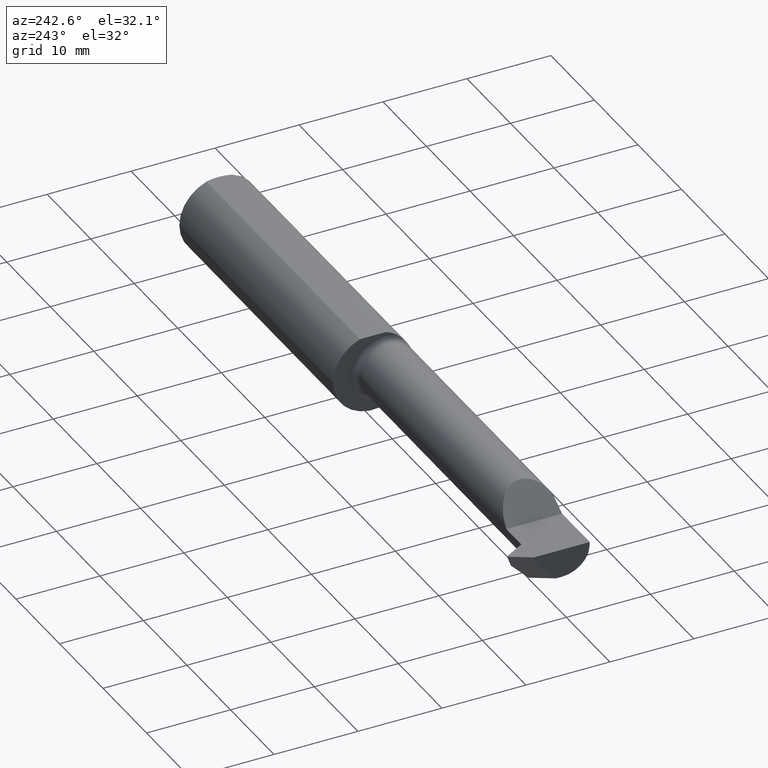
[diagram: clean part render]
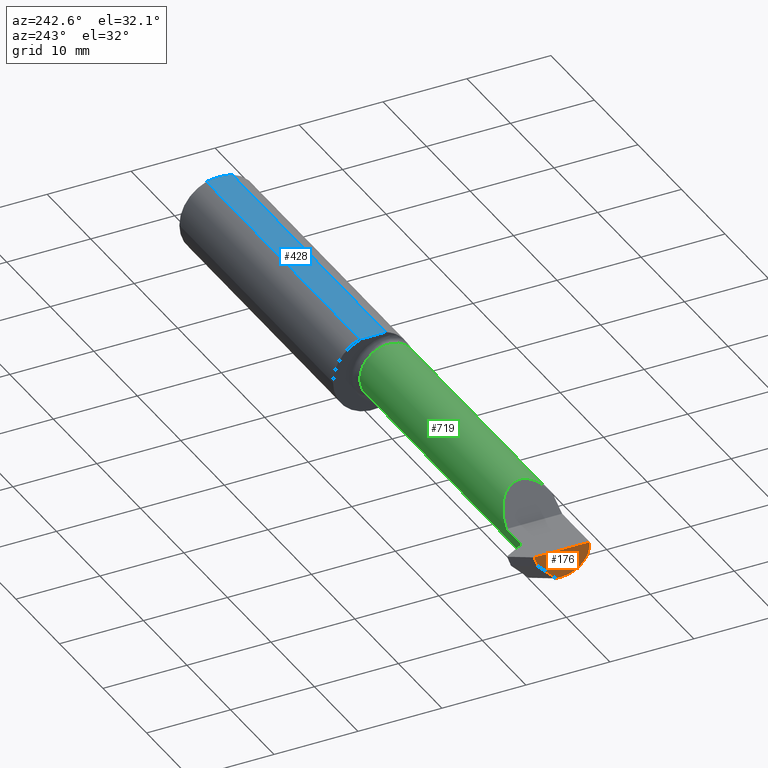
[diagram: same view with three faces highlighted in distinct colors, each labeled with its STEP entity id]
A machine part, auxiliary view with three faces highlighted in distinct colors.
Their STEP definitions:

[orange] entity #176 — the highlighted planar face has unit normal (-1, -0, 0).
#11 = DIRECTION ( 'NONE',  ( 0.000000000000000000, 1.000000000000000000, 0.000000000000000000 ) ) ;
#12 = ORIENTED_EDGE ( 'NONE', *, *, #675, .F. ) ;
#16 = ORIENTED_EDGE ( 'NONE', *, *, #90, .F. ) ;
#21 = DIRECTION ( 'NONE',  ( -1.000000000000000000, -1.224646799147352961E-16, 0.000000000000000000 ) ) ;
#51 = EDGE_CURVE ( 'NONE', #843, #446, #739, .T. ) ;
#65 = CARTESIAN_POINT ( 'NONE',  ( -3.000000000000000444, 0.05417595023755275574, -0.05000000000000009992 ) ) ;
#90 = EDGE_CURVE ( 'NONE', #459, #215, #741, .T. ) ;
#108 = CIRCLE ( 'NONE', #783, 0.1873499999999999888 ) ;
#112 = CARTESIAN_POINT ( 'NONE',  ( -3.000000000000000444, -6.123233995736767268E-17, 0.000000000000000000 ) ) ;
#133 = DIRECTION ( 'NONE',  ( -6.842104469694088491E-17, 0.3768974211598653534, 0.9262550048032361927 ) ) ;
#153 = ORIENTED_EDGE ( 'NONE', *, *, #678, .F. ) ;
#163 = EDGE_CURVE ( 'NONE', #231, #843, #108, .T. ) ;
#176 = ADVANCED_FACE ( 'NONE', ( #220 ), #813, .T. ) ;
#183 = AXIS2_PLACEMENT_3D ( 'NONE', #463, #388, #674 ) ;
#215 = VERTEX_POINT ( 'NONE', #704 ) ;
#220 = FACE_OUTER_BOUND ( 'NONE', #417, .T. ) ;
#231 = VERTEX_POINT ( 'NONE', #761 ) ;
#235 = ORIENTED_EDGE ( 'NONE', *, *, #163, .F. ) ;
#244 = DIRECTION ( 'NONE',  ( 0.000000000000000000, 1.000000000000000000, 8.972136187338140072E-17 ) ) ;
#251 = AXIS2_PLACEMENT_3D ( 'NONE', #273, #21, #485 ) ;
#268 = CARTESIAN_POINT ( 'NONE',  ( -3.000000000000000444, -6.123233995736767268E-17, 0.000000000000000000 ) ) ;
#273 = CARTESIAN_POINT ( 'NONE',  ( -3.000000000000000444, -6.123233995736767268E-17, 0.000000000000000000 ) ) ;
#296 = VECTOR ( 'NONE', #133, 39.37007874015748854 ) ;
#303 = DIRECTION ( 'NONE',  ( 0.000000000000000000, -0.7071067811865535679, -0.7071067811865415775 ) ) ;
#328 = CARTESIAN_POINT ( 'NONE',  ( -3.000000000000000444, -0.1783697086546697508, -0.05730854678360152582 ) ) ;
#336 = CARTESIAN_POINT ( 'NONE',  ( -3.000000000000000444, -0.02882404976244833800, -0.1329999999999999793 ) ) ;
#347 = VECTOR ( 'NONE', #585, 39.37007874015748143 ) ;
#386 = CARTESIAN_POINT ( 'NONE',  ( -3.000000000000000444, -0.05835000000000024889, -0.1330000000000000349 ) ) ;
#388 = DIRECTION ( 'NONE',  ( 1.000000000000000000, 1.553500558300393113E-17, -0.000000000000000000 ) ) ;
#417 = EDGE_LOOP ( 'NONE', ( #16, #751, #12, #705, #235, #153 ) ) ;
#446 = VERTEX_POINT ( 'NONE', #543 ) ;
#459 = VERTEX_POINT ( 'NONE', #65 ) ;
#463 = CARTESIAN_POINT ( 'NONE',  ( -3.000000000000000444, -0.05835000000000017950, 0.000000000000000000 ) ) ;
#485 = DIRECTION ( 'NONE',  ( 1.224646799147352961E-16, -1.000000000000000000, 0.000000000000000000 ) ) ;
#508 = LINE ( 'NONE', #664, #862 ) ;
#518 = LINE ( 'NONE', #386, #711 ) ;
#529 = VERTEX_POINT ( 'NONE', #336 ) ;
#543 = CARTESIAN_POINT ( 'NONE',  ( -3.000000000000000444, -0.05835000000000015175, -0.1330000000000000349 ) ) ;
#546 = DIRECTION ( 'NONE',  ( 1.000000000000000000, 1.224646799147352961E-16, -0.000000000000000000 ) ) ;
#585 = DIRECTION ( 'NONE',  ( 1.224646799147352961E-16, -1.000000000000000000, 0.000000000000000000 ) ) ;
#664 = CARTESIAN_POINT ( 'NONE',  ( -3.000000000000000444, 0.9912844120552342098, 0.8871084618176654502 ) ) ;
#674 = DIRECTION ( 'NONE',  ( 0.000000000000000000, -1.000000000000000000, 0.000000000000000000 ) ) ;
#675 = EDGE_CURVE ( 'NONE', #446, #529, #518, .T. ) ;
#678 = EDGE_CURVE ( 'NONE', #215, #231, #861, .T. ) ;
#691 = EDGE_CURVE ( 'NONE', #459, #529, #508, .T. ) ;
#704 = CARTESIAN_POINT ( 'NONE',  ( -3.000000000000000444, 0.07452118017992298560, 0.000000000000000000 ) ) ;
#705 = ORIENTED_EDGE ( 'NONE', *, *, #51, .F. ) ;
#711 = VECTOR ( 'NONE', #244, 39.37007874015748143 ) ;
#739 = CIRCLE ( 'NONE', #183, 0.1330000000000000349 ) ;
#741 = LINE ( 'NONE', #868, #296 ) ;
#751 = ORIENTED_EDGE ( 'NONE', *, *, #691, .T. ) ;
#761 = CARTESIAN_POINT ( 'NONE',  ( -3.000000000000000444, -0.1873500000000000443, 0.000000000000000000 ) ) ;
#783 = AXIS2_PLACEMENT_3D ( 'NONE', #268, #546, #11 ) ;
#813 = PLANE ( 'NONE',  #251 ) ;
#843 = VERTEX_POINT ( 'NONE', #328 ) ;
#861 = LINE ( 'NONE', #112, #347 ) ;
#862 = VECTOR ( 'NONE', #303, 39.37007874015748143 ) ;
#868 = CARTESIAN_POINT ( 'NONE',  ( -3.000000000000000444, 0.06393532237734401991, -0.02601557670413293805 ) ) ;

[blue] entity #428 — the highlighted planar face has unit normal (-0, 0, -1).
#10 = EDGE_CURVE ( 'NONE', #103, #630, #250, .T. ) ;
#36 = CARTESIAN_POINT ( 'NONE',  ( -0.009999999999999620304, 0.06039039658753714984, 0.1773500000000000354 ) ) ;
#74 = DIRECTION ( 'NONE',  ( -9.422009876951564852E-18, 1.000000000000000000, 1.608104540654732770E-16 ) ) ;
#103 = VERTEX_POINT ( 'NONE', #550 ) ;
#110 = CARTESIAN_POINT ( 'NONE',  ( -0.006863038267948253987, -0.05065855487579219718, 0.1773500000000001187 ) ) ;
#123 = CARTESIAN_POINT ( 'NONE',  ( -0.0009167640511159435429, 0.02059964124962118323, 0.1773500000000001187 ) ) ;
#139 = CARTESIAN_POINT ( 'NONE',  ( -0.009999999999999620304, 0.06039039658753714984, 0.1773500000000000354 ) ) ;
#146 = ORIENTED_EDGE ( 'NONE', *, *, #264, .T. ) ;
#181 = CARTESIAN_POINT ( 'NONE',  ( -1.400000000000000133, 0.2123500000000002053, 0.1773500000000001187 ) ) ;
#208 = LINE ( 'NONE', #567, #512 ) ;
#250 = LINE ( 'NONE', #181, #631 ) ;
#262 = PLANE ( 'NONE',  #443 ) ;
#264 = EDGE_CURVE ( 'NONE', #455, #503, #661, .T. ) ;
#269 = ORIENTED_EDGE ( 'NONE', *, *, #743, .T. ) ;
#288 = CARTESIAN_POINT ( 'NONE',  ( -1.400000000000000133, 0.06039039658753714290, 0.1773500000000000909 ) ) ;
#310 = CARTESIAN_POINT ( 'NONE',  ( -4.018563988022489946E-33, 2.586779880155948158E-16, 0.1773500000000000909 ) ) ;
#312 = CARTESIAN_POINT ( 'NONE',  ( -0.009999999999999620304, -0.06039039658753660861, 0.1773500000000000354 ) ) ;
#327 = EDGE_CURVE ( 'NONE', #503, #630, #660, .T. ) ;
#361 = CARTESIAN_POINT ( 'NONE',  ( -4.018563988022489946E-33, 2.586779880155948158E-16, 0.1773500000000000909 ) ) ;
#372 = CARTESIAN_POINT ( 'NONE',  ( -0.004318418993203173434, -0.04060972747957806994, 0.1773500000000000909 ) ) ;
#428 = ADVANCED_FACE ( 'NONE', ( #749 ), #262, .F. ) ;
#443 = AXIS2_PLACEMENT_3D ( 'NONE', #821, #687, #484 ) ;
#445 = CARTESIAN_POINT ( 'NONE',  ( 5.243156175340007021E-16, 0.01028390533945653697, 0.1773500000000001187 ) ) ;
#455 = VERTEX_POINT ( 'NONE', #670 ) ;
#484 = DIRECTION ( 'NONE',  ( 0.000000000000000000, 1.000000000000000000, 1.608104540654732770E-16 ) ) ;
#486 = VECTOR ( 'NONE', #836, 39.37007874015748143 ) ;
#503 = VERTEX_POINT ( 'NONE', #139 ) ;
#505 = DIRECTION ( 'NONE',  ( 1.000000000000000000, 1.224646799147352961E-16, -0.000000000000000000 ) ) ;
#512 = VECTOR ( 'NONE', #505, 39.37007874015748143 ) ;
#515 = CARTESIAN_POINT ( 'NONE',  ( -0.0008974174807281616682, -0.02044204845470701595, 0.1773500000000000909 ) ) ;
#550 = CARTESIAN_POINT ( 'NONE',  ( -1.400000000000000133, -0.06039039658753677514, 0.1773500000000000354 ) ) ;
#561 = EDGE_CURVE ( 'NONE', #103, #745, #208, .T. ) ;
#567 = CARTESIAN_POINT ( 'NONE',  ( -3.000000000000000444, -0.06039039658753697637, 0.1773500000000000354 ) ) ;
#571 = CARTESIAN_POINT ( 'NONE',  ( -0.004345633232307873246, 0.04072602595449489882, 0.1773500000000001187 ) ) ;
#597 = ORIENTED_EDGE ( 'NONE', *, *, #561, .T. ) ;
#630 = VERTEX_POINT ( 'NONE', #288 ) ;
#631 = VECTOR ( 'NONE', #74, 39.37007874015748143 ) ;
#643 = CARTESIAN_POINT ( 'NONE',  ( -0.006852151730285845586, 0.05062478141268319382, 0.1773500000000000909 ) ) ;
#649 = CARTESIAN_POINT ( 'NONE',  ( 5.173904006555303358E-16, -0.01026980879711908781, 0.1773500000000000909 ) ) ;
#660 = LINE ( 'NONE', #730, #486 ) ;
#661 = B_SPLINE_CURVE_WITH_KNOTS ( 'NONE', 3,
 ( #361, #445, #123, #571, #643, #36 ),
 .UNSPECIFIED., .F., .F.,
 ( 4, 2, 4 ),
 ( 0.003500626357656789773, 0.004276870921897977552, 0.005053115486139164898 ),
 .UNSPECIFIED. ) ;
#670 = CARTESIAN_POINT ( 'NONE',  ( -4.018563988022489946E-33, 2.586779880155948158E-16, 0.1773500000000000909 ) ) ;
#687 = DIRECTION ( 'NONE',  ( -2.498191301712524670E-33, 1.608104540654732770E-16, -1.000000000000000000 ) ) ;
#709 = ORIENTED_EDGE ( 'NONE', *, *, #327, .T. ) ;
#718 = EDGE_LOOP ( 'NONE', ( #742, #597, #269, #146, #709 ) ) ;
#730 = CARTESIAN_POINT ( 'NONE',  ( -3.000000000000000444, 0.06039039658753678902, 0.1773500000000000354 ) ) ;
#742 = ORIENTED_EDGE ( 'NONE', *, *, #10, .F. ) ;
#743 = EDGE_CURVE ( 'NONE', #745, #455, #873, .T. ) ;
#745 = VERTEX_POINT ( 'NONE', #312 ) ;
#749 = FACE_OUTER_BOUND ( 'NONE', #718, .T. ) ;
#789 = CARTESIAN_POINT ( 'NONE',  ( -0.009999999999999620304, -0.06039039658753660861, 0.1773500000000000354 ) ) ;
#821 = CARTESIAN_POINT ( 'NONE',  ( -3.000000000000000444, 0.2123500000000002053, 0.1773500000000001187 ) ) ;
#836 = DIRECTION ( 'NONE',  ( -1.000000000000000000, -1.224646799147352961E-16, 0.000000000000000000 ) ) ;
#873 = B_SPLINE_CURVE_WITH_KNOTS ( 'NONE', 3,
 ( #789, #110, #372, #515, #649, #310 ),
 .UNSPECIFIED., .F., .F.,
 ( 4, 2, 4 ),
 ( 0.001950265285394799661, 0.002725445821525794825, 0.003500626357656789773 ),
 .UNSPECIFIED. ) ;

[green] entity #719 — the highlighted cylindrical surface (edge-blend (fillet) strip) has radius 3.3782 mm, axis along (-1, -0, -0).
#22 = VERTEX_POINT ( 'NONE', #734 ) ;
#25 = EDGE_CURVE ( 'NONE', #22, #851, #513, .T. ) ;
#27 = EDGE_CURVE ( 'NONE', #843, #851, #860, .T. ) ;
#28 = CARTESIAN_POINT ( 'NONE',  ( -2.870501519666967649, 0.06407714550917130436, -0.05196724008908396725 ) ) ;
#37 = VECTOR ( 'NONE', #846, 39.37007874015748143 ) ;
#51 = EDGE_CURVE ( 'NONE', #843, #446, #739, .T. ) ;
#59 = CARTESIAN_POINT ( 'NONE',  ( -2.692691453216398134, -0.1783697086546693344, 0.05730854678360255278 ) ) ;
#81 = CARTESIAN_POINT ( 'NONE',  ( -2.750000000000000888, 0.07464999999999998026, 0.000000000000000000 ) ) ;
#92 = DIRECTION ( 'NONE',  ( -1.000000000000000000, -9.422009876951564852E-18, -0.000000000000000000 ) ) ;
#93 = ORIENTED_EDGE ( 'NONE', *, *, #186, .T. ) ;
#113 = EDGE_CURVE ( 'NONE', #338, #578, #617, .T. ) ;
#144 = CARTESIAN_POINT ( 'NONE',  ( -2.881074374157795770, -0.05835000000000017950, 0.000000000000000000 ) ) ;
#149 = ORIENTED_EDGE ( 'NONE', *, *, #237, .F. ) ;
#164 = CARTESIAN_POINT ( 'NONE',  ( -2.870501519666967649, 0.06407714550917130436, -0.05196724008908396725 ) ) ;
#169 = CARTESIAN_POINT ( 'NONE',  ( -2.881074374157795770, 0.07464999999999984148, 0.000000000000000000 ) ) ;
#183 = AXIS2_PLACEMENT_3D ( 'NONE', #463, #388, #674 ) ;
#186 = EDGE_CURVE ( 'NONE', #430, #256, #552, .T. ) ;
#189 = CARTESIAN_POINT ( 'NONE',  ( -1.424999999999999600, -0.1783697086546693900, -0.05730854678360270543 ) ) ;
#199 = EDGE_CURVE ( 'NONE', #390, #572, #837, .T. ) ;
#200 = DIRECTION ( 'NONE',  ( 0.000000000000000000, -1.000000000000000000, 0.000000000000000000 ) ) ;
#205 = DIRECTION ( 'NONE',  ( 0.000000000000000000, -1.000000000000000000, 0.000000000000000000 ) ) ;
#210 = CARTESIAN_POINT ( 'NONE',  ( -2.873857010182696126, 0.07107790796794667687, -0.03547447728800876693 ) ) ;
#214 = CARTESIAN_POINT ( 'NONE',  ( -2.881074374157795770, 0.07464999999999984148, 0.000000000000000000 ) ) ;
#217 = CARTESIAN_POINT ( 'NONE',  ( -2.877429102214748013, 0.07464999999999998026, -0.01791708402103228334 ) ) ;
#233 = DIRECTION ( 'NONE',  ( 1.000000000000000000, 9.422009876951564852E-18, 0.000000000000000000 ) ) ;
#236 = CYLINDRICAL_SURFACE ( 'NONE', #820, 0.1330000000000001181 ) ;
#237 = EDGE_CURVE ( 'NONE', #578, #390, #422, .T. ) ;
#256 = VERTEX_POINT ( 'NONE', #59 ) ;
#263 = DIRECTION ( 'NONE',  ( 1.000000000000000000, 9.422009876951564852E-18, 0.000000000000000000 ) ) ;
#287 = ORIENTED_EDGE ( 'NONE', *, *, #294, .F. ) ;
#294 = EDGE_CURVE ( 'NONE', #22, #256, #457, .T. ) ;
#304 = EDGE_CURVE ( 'NONE', #338, #430, #779, .T. ) ;
#311 = ORIENTED_EDGE ( 'NONE', *, *, #27, .F. ) ;
#313 = CARTESIAN_POINT ( 'NONE',  ( -2.881074374157795770, -0.05835000000000015175, -0.1330000000000000349 ) ) ;
#319 = DIRECTION ( 'NONE',  ( -1.000000000000000000, -9.422009876951564852E-18, -0.000000000000000000 ) ) ;
#321 = VECTOR ( 'NONE', #92, 39.37007874015748143 ) ;
#328 = CARTESIAN_POINT ( 'NONE',  ( -3.000000000000000444, -0.1783697086546697508, -0.05730854678360152582 ) ) ;
#338 = VERTEX_POINT ( 'NONE', #169 ) ;
#342 = CARTESIAN_POINT ( 'NONE',  ( -2.530319072763995258, -0.1008380660117481203, 0.2196809272360035481 ) ) ;
#348 = CARTESIAN_POINT ( 'NONE',  ( -2.570066830337791153, 0.07464999999999992475, 0.1799331696622079035 ) ) ;
#356 = ORIENTED_EDGE ( 'NONE', *, *, #358, .F. ) ;
#358 = EDGE_CURVE ( 'NONE', #572, #446, #522, .T. ) ;
#374 = DIRECTION ( 'NONE',  ( 0.000000000000000000, -1.000000000000000000, 0.000000000000000000 ) ) ;
#377 = AXIS2_PLACEMENT_3D ( 'NONE', #144, #824, #205 ) ;
#388 = DIRECTION ( 'NONE',  ( 1.000000000000000000, 1.553500558300393113E-17, -0.000000000000000000 ) ) ;
#390 = VERTEX_POINT ( 'NONE', #875 ) ;
#422 = LINE ( 'NONE', #698, #321 ) ;
#430 = VERTEX_POINT ( 'NONE', #801 ) ;
#438 = CARTESIAN_POINT ( 'NONE',  ( -3.000000000000000444, 0.07464999999999995250, 0.000000000000000000 ) ) ;
#444 = VECTOR ( 'NONE', #263, 39.37007874015748143 ) ;
#446 = VERTEX_POINT ( 'NONE', #543 ) ;
#448 = ORIENTED_EDGE ( 'NONE', *, *, #199, .F. ) ;
#457 = LINE ( 'NONE', #638, #37 ) ;
#463 = CARTESIAN_POINT ( 'NONE',  ( -3.000000000000000444, -0.05835000000000017950, 0.000000000000000000 ) ) ;
#470 = VECTOR ( 'NONE', #770, 39.37007874015748143 ) ;
#471 = AXIS2_PLACEMENT_3D ( 'NONE', #592, #524, #200 ) ;
#482 = EDGE_LOOP ( 'NONE', ( #608, #809, #93, #287, #569, #311, #596, #356, #448, #149 ) ) ;
#498 = CARTESIAN_POINT ( 'NONE',  ( -2.692691453216398134, -0.1783697086546693344, 0.05730854678360255278 ) ) ;
#513 = CIRCLE ( 'NONE', #471, 0.1330000000000002569 ) ;
#520 = CARTESIAN_POINT ( 'NONE',  ( -2.153037187078897574, -0.1783697086546693344, -0.05730854678360262910 ) ) ;
#522 = LINE ( 'NONE', #313, #470 ) ;
#524 = DIRECTION ( 'NONE',  ( -1.000000000000000000, -9.422009876951564852E-18, -0.000000000000000000 ) ) ;
#543 = CARTESIAN_POINT ( 'NONE',  ( -3.000000000000000444, -0.05835000000000015175, -0.1330000000000000349 ) ) ;
#552 =( BOUNDED_CURVE ( )  B_SPLINE_CURVE ( 3, ( #81, #348, #342, #498 ),
 .UNSPECIFIED., .F., .T. ) 
 B_SPLINE_CURVE_WITH_KNOTS ( ( 4, 4 ),
 ( 1.570796326794896558, 4.266908708460878330 ),
 .UNSPECIFIED. ) 
 CURVE ( )  GEOMETRIC_REPRESENTATION_ITEM ( )  RATIONAL_B_SPLINE_CURVE ( ( 1.000000000000000000, 0.4806019281062884341, 0.4806019281062884341, 1.000000000000000000 ) ) 
 REPRESENTATION_ITEM ( '' )  );
#569 = ORIENTED_EDGE ( 'NONE', *, *, #25, .T. ) ;
#572 = VERTEX_POINT ( 'NONE', #829 ) ;
#578 = VERTEX_POINT ( 'NONE', #164 ) ;
#592 = CARTESIAN_POINT ( 'NONE',  ( -1.424999999999999600, -0.05835000000000015868, 0.000000000000000000 ) ) ;
#596 = ORIENTED_EDGE ( 'NONE', *, *, #51, .T. ) ;
#608 = ORIENTED_EDGE ( 'NONE', *, *, #113, .F. ) ;
#617 =( BOUNDED_CURVE ( )  B_SPLINE_CURVE ( 3, ( #214, #217, #210, #28 ),
 .UNSPECIFIED., .F., .T. ) 
 B_SPLINE_CURVE_WITH_KNOTS ( ( 4, 4 ),
 ( 1.570796326794896780, 1.972222054753674847 ),
 .UNSPECIFIED. ) 
 CURVE ( )  GEOMETRIC_REPRESENTATION_ITEM ( )  RATIONAL_B_SPLINE_CURVE ( ( 1.000000000000000000, 0.9866164697472141754, 0.9866164697472141754, 1.000000000000000000 ) ) 
 REPRESENTATION_ITEM ( '' )  );
#638 = CARTESIAN_POINT ( 'NONE',  ( -2.153037187078897574, -0.1783697086546693344, 0.05730854678360262910 ) ) ;
#674 = DIRECTION ( 'NONE',  ( 0.000000000000000000, -1.000000000000000000, 0.000000000000000000 ) ) ;
#698 = CARTESIAN_POINT ( 'NONE',  ( -3.000000000000002220, 0.06407714550917015250, -0.05196724008908373132 ) ) ;
#715 = FACE_OUTER_BOUND ( 'NONE', #482, .T. ) ;
#719 = ADVANCED_FACE ( 'NONE', ( #715 ), #236, .T. ) ;
#728 = CARTESIAN_POINT ( 'NONE',  ( -3.000000000000000444, -0.05835000000000017950, 0.000000000000000000 ) ) ;
#734 = CARTESIAN_POINT ( 'NONE',  ( -1.424999999999999600, -0.1783697086546693900, 0.05730854678360265686 ) ) ;
#739 = CIRCLE ( 'NONE', #183, 0.1330000000000000349 ) ;
#770 = DIRECTION ( 'NONE',  ( -1.000000000000000000, -1.553500558300393421E-17, -0.000000000000000000 ) ) ;
#779 = LINE ( 'NONE', #438, #823 ) ;
#801 = CARTESIAN_POINT ( 'NONE',  ( -2.750000000000000888, 0.07464999999999998026, 0.000000000000000000 ) ) ;
#809 = ORIENTED_EDGE ( 'NONE', *, *, #304, .T. ) ;
#820 = AXIS2_PLACEMENT_3D ( 'NONE', #728, #319, #374 ) ;
#823 = VECTOR ( 'NONE', #233, 39.37007874015748143 ) ;
#824 = DIRECTION ( 'NONE',  ( -1.000000000000000000, -9.422009876951564852E-18, -0.000000000000000000 ) ) ;
#829 = CARTESIAN_POINT ( 'NONE',  ( -2.881074374157795770, -0.05835000000000015175, -0.1330000000000000349 ) ) ;
#837 = CIRCLE ( 'NONE', #377, 0.1330000000000000349 ) ;
#843 = VERTEX_POINT ( 'NONE', #328 ) ;
#846 = DIRECTION ( 'NONE',  ( -1.000000000000000000, -9.422009876951564852E-18, -0.000000000000000000 ) ) ;
#851 = VERTEX_POINT ( 'NONE', #189 ) ;
#860 = LINE ( 'NONE', #520, #444 ) ;
#875 = CARTESIAN_POINT ( 'NONE',  ( -2.881074374157795770, 0.06407714550917452401, -0.05196724008907319808 ) ) ;